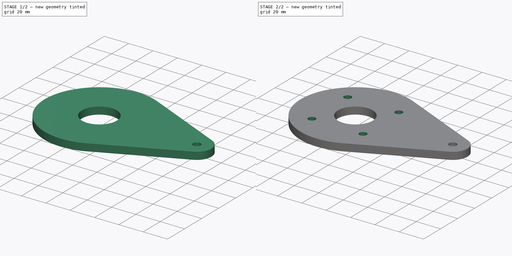
[diagram: build sequence overview — one tinted view per stage of 2, left to right]
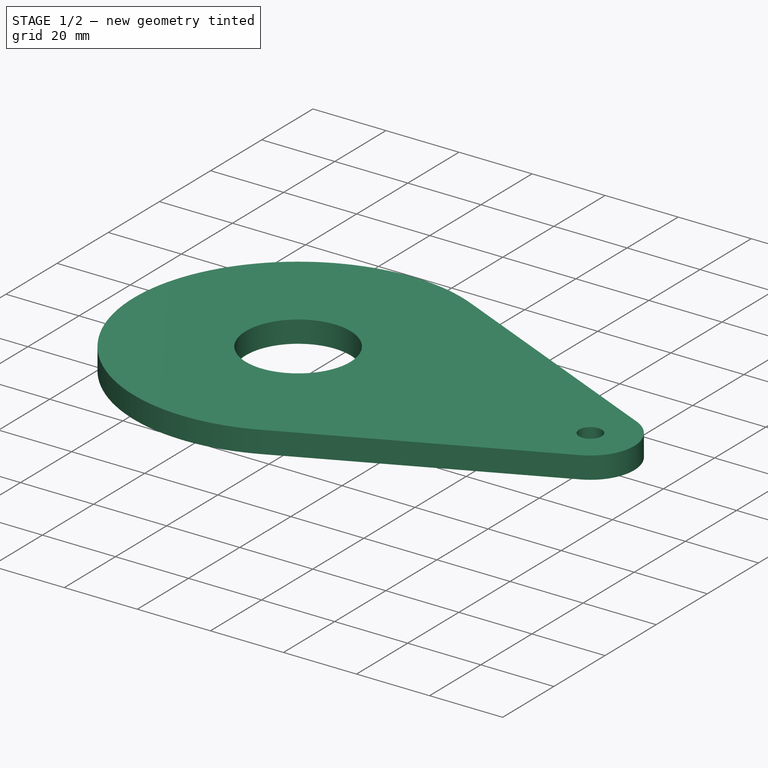
[diagram: stage 1 of 2 — iso view after this stage's code; geometry added in this stage tinted green]
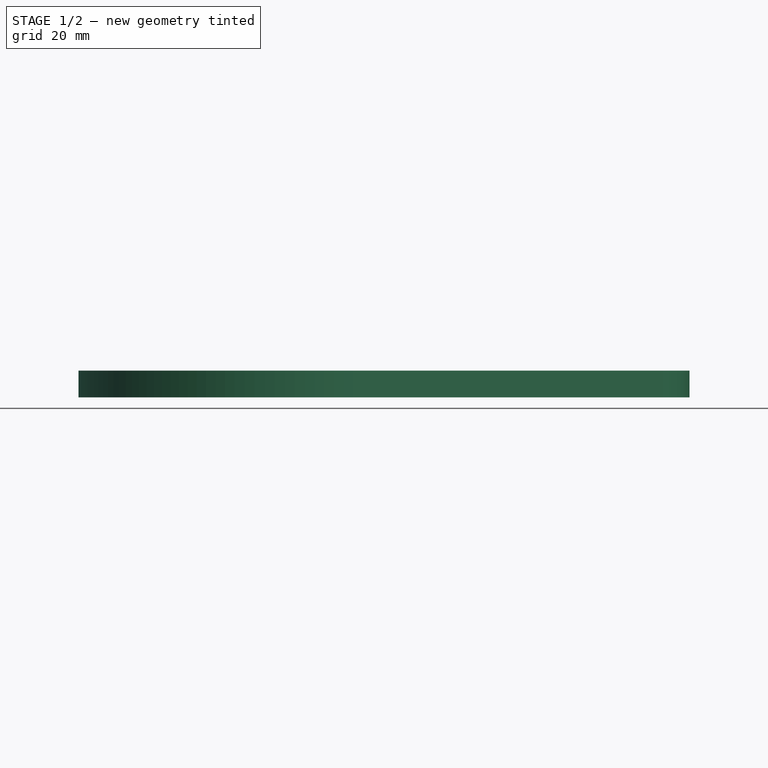
[diagram: stage 1 of 2 — front view after this stage's code; geometry added in this stage tinted green]
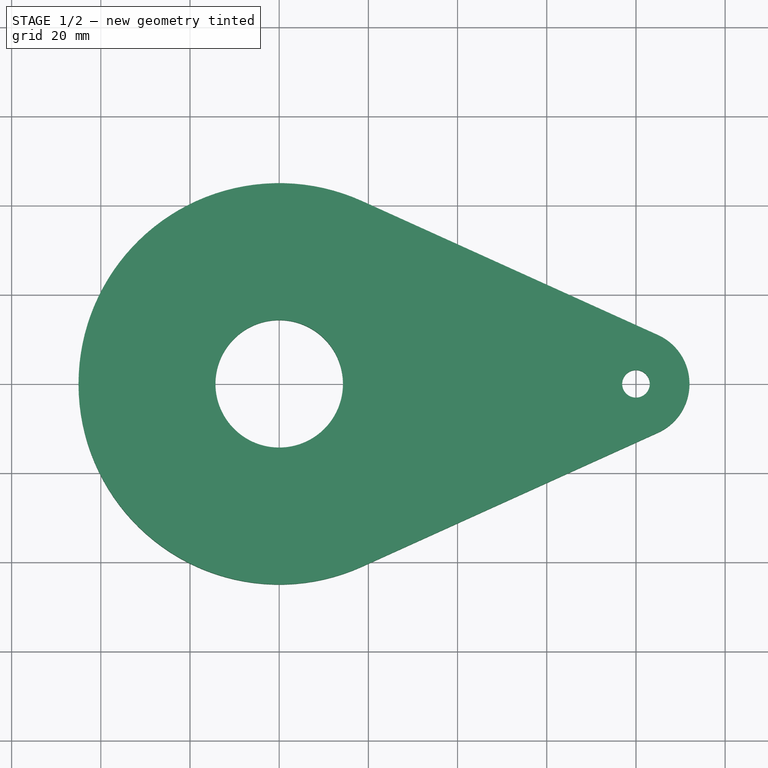
[diagram: stage 1 of 2 — top view after this stage's code; geometry added in this stage tinted green]
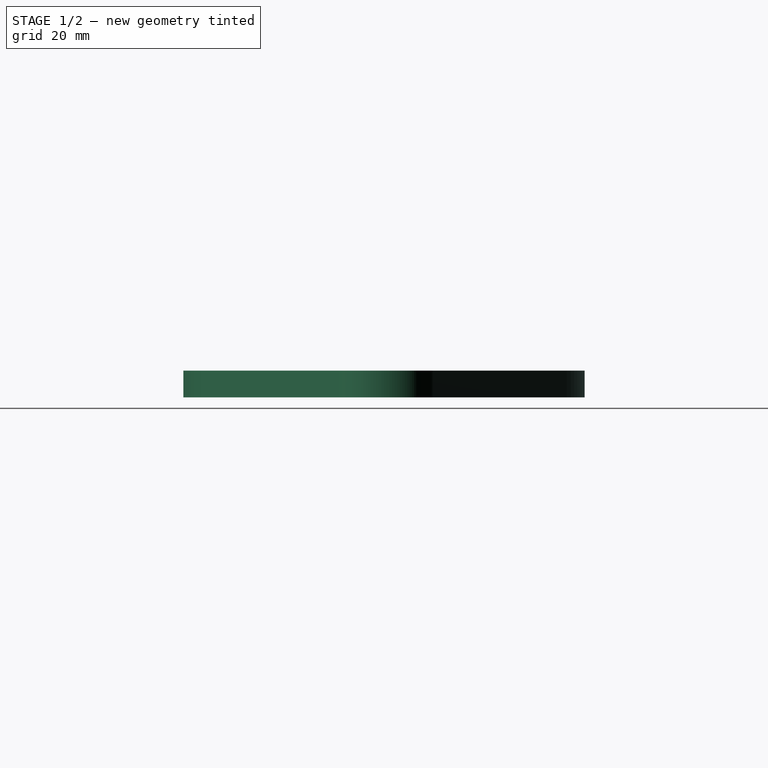
[diagram: stage 1 of 2 — right view after this stage's code; geometry added in this stage tinted green]
FCSTD DOCUMENT
Label: control-arm
objects: Sketcher::SketchObject×2, PartDesign::Pad×1, PartDesign::Pocket×1
note: 6 computed .brp shape members not serialized (recipe doc carries the construction recipe); baked Part::Feature solids carry a one-line shape summary decoded from their .brp

FEATURE [Sketcher::SketchObject] Sketch
  sketch-geometry (6):
    g0: ArcOfCircle CenterX=0 CenterY=0 CenterZ=0 NormalX=0 NormalY=0 NormalZ=1 Radius=45 StartAngle=1.1456 EndAngle=5.13758
    g1: ArcOfCircle CenterX=80 CenterY=0 CenterZ=0 NormalX=0 NormalY=0 NormalZ=1 Radius=12 StartAngle=5.13758 EndAngle=7.42879
    g2: LineSegment StartX=18.5625 StartY=40.9931 StartZ=0 EndX=84.95 EndY=10.9315 EndZ=0
    g3: LineSegment StartX=18.5625 StartY=-40.9931 StartZ=0 EndX=84.95 EndY=-10.9315 EndZ=0
    g4: Circle CenterX=0 CenterY=0 CenterZ=0 NormalX=0 NormalY=0 NormalZ=1 Radius=14.3
    g5: Circle CenterX=80 CenterY=0 CenterZ=0 NormalX=0 NormalY=0 NormalZ=1 Radius=3.1
  constraints (17):
    c: Coincident(g0,g-1)
    c: PointOnObject(g1,g-1)
    c: Coincident(g2,g0)
    c: Coincident(g3,g1)
    c: Tangent(g2,g1)
    c: Coincident(g1,g2)
    c: Tangent(g0,g2)
    c: Coincident(g3,g0)
    c: Tangent(g0,g3)
    c: Tangent(g3,g1)
    c: DistanceX(g-1,g1) = 80
    c: Radius(g0) = 45
    c: Radius(g1) = 12
    c: Coincident(g4,g-1)
    c: Radius(g4) = 14.3
    c: Coincident(g5,g1)
    c: Radius(g5) = 3.1
FEATURE [PartDesign::Pad] Pad
  Length = 6
  Length2 = 100
  Sketch = -> Sketch
  Type = 0
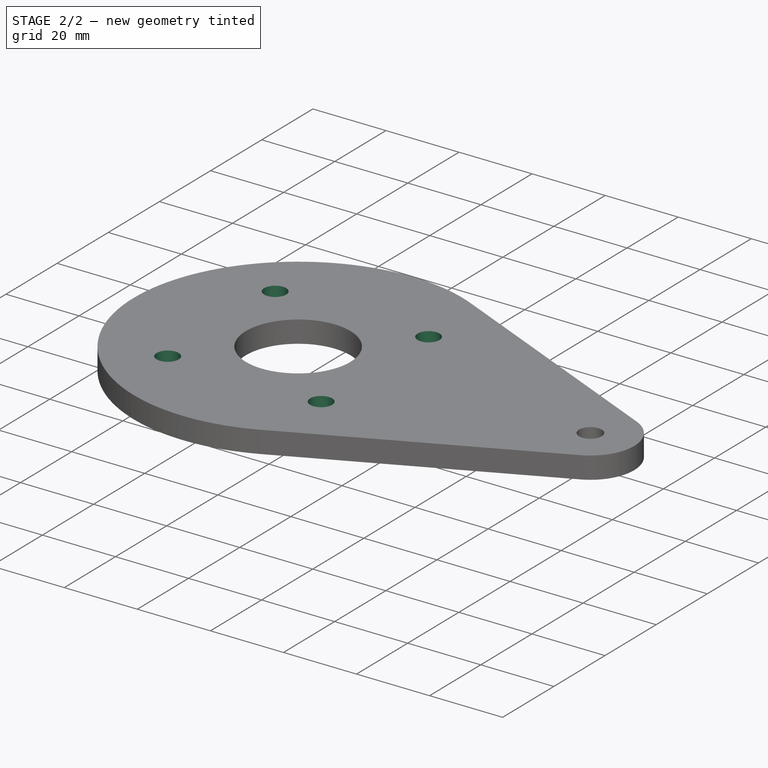
[diagram: stage 2 of 2 — iso view after this stage's code; geometry added in this stage tinted green]
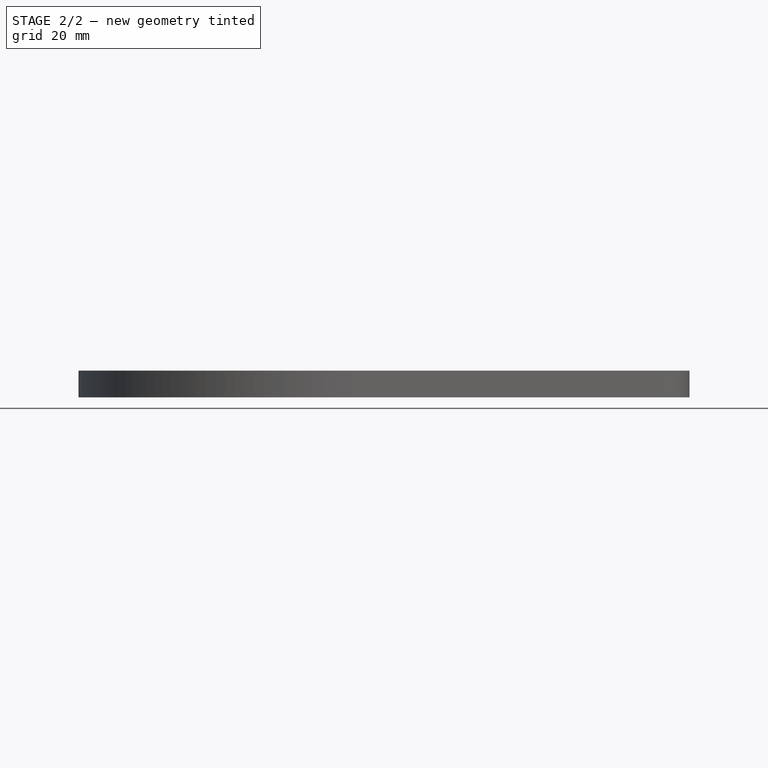
[diagram: stage 2 of 2 — front view after this stage's code; geometry added in this stage tinted green]
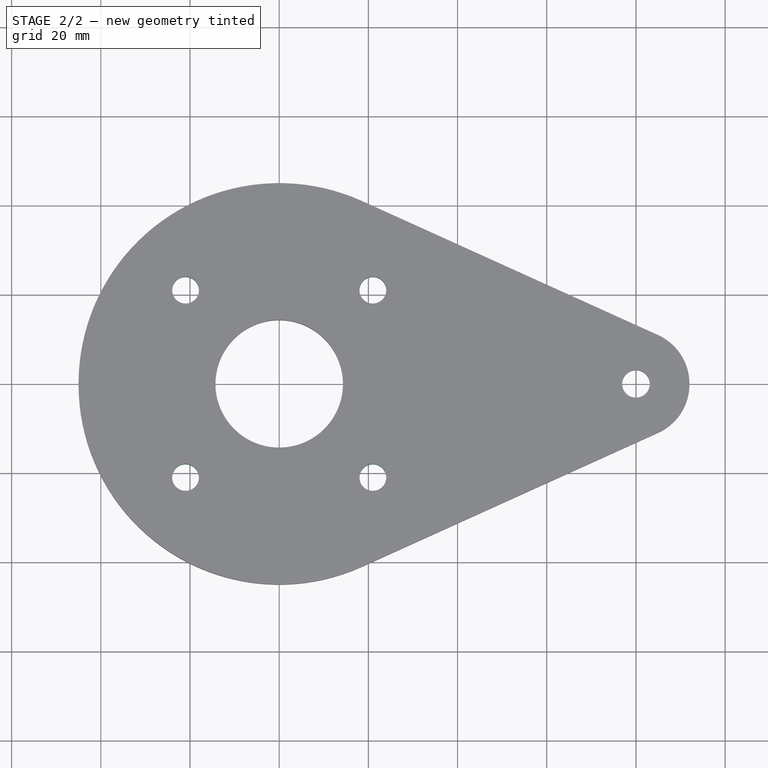
[diagram: stage 2 of 2 — top view after this stage's code; geometry added in this stage tinted green]
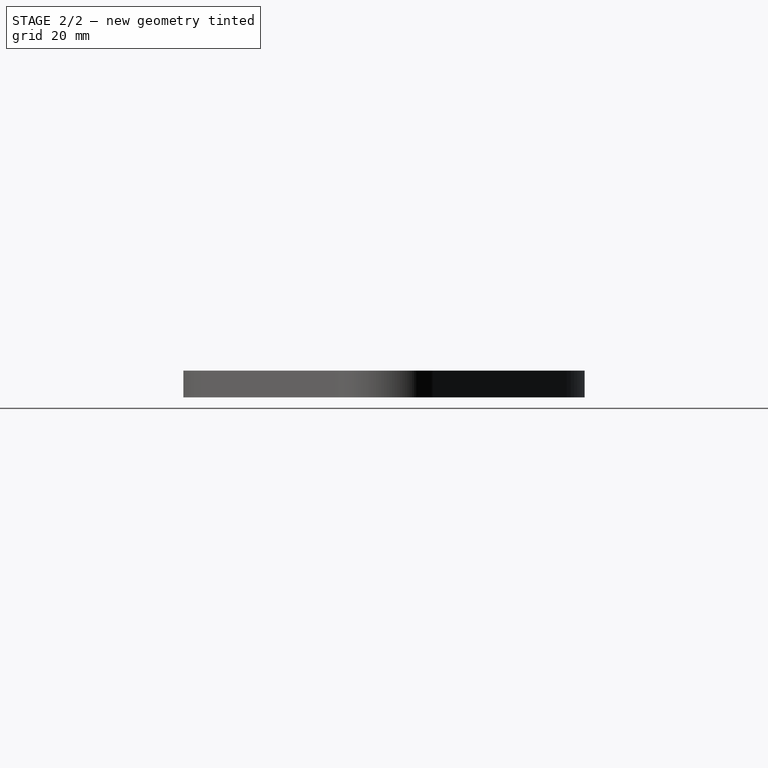
[diagram: stage 2 of 2 — right view after this stage's code; geometry added in this stage tinted green]
FEATURE [Sketcher::SketchObject] Sketch001
  Placement = pos=(0,0,6) rot=(0,0,1;0rad)
  Support = -> Pad [Face8]
  sketch-geometry (8):
    g0: LineSegment [constr] StartX=-21.0011 StartY=21.0011 StartZ=0 EndX=21.0011 EndY=21.0011 EndZ=0
    g1: LineSegment [constr] StartX=21.0011 StartY=21.0011 StartZ=0 EndX=21.0011 EndY=-21.0011 EndZ=0
    g2: LineSegment [constr] StartX=21.0011 StartY=-21.0011 StartZ=0 EndX=-21.0011 EndY=-21.0011 EndZ=0
    g3: LineSegment [constr] StartX=-21.0011 StartY=-21.0011 StartZ=0 EndX=-21.0011 EndY=21.0011 EndZ=0
    g4: Circle CenterX=-21.0011 CenterY=21.0011 CenterZ=0 NormalX=0 NormalY=0 NormalZ=1 Radius=3
    g5: Circle CenterX=21.0011 CenterY=21.0011 CenterZ=0 NormalX=0 NormalY=0 NormalZ=1 Radius=3
    g6: Circle CenterX=-21.0011 CenterY=-21.0011 CenterZ=0 NormalX=0 NormalY=0 NormalZ=1 Radius=3
    g7: Circle CenterX=21.0011 CenterY=-21.0011 CenterZ=0 NormalX=0 NormalY=0 NormalZ=1 Radius=3
  constraints (20):
    c: Coincident(g0,g1)
    c: Coincident(g1,g2)
    c: Coincident(g2,g3)
    c: Coincident(g3,g0)
    c: Horizontal(g0)
    c: Horizontal(g2)
    c: Vertical(g1)
    c: Vertical(g3)
    c: Symmetric(g0,g0,g-2)
    c: Symmetric(g0,g2,g-1)
    c: Distance(g-1,g0) = 29.7
    c: Equal(g0,g1)
    c: Coincident(g4,g0)
    c: Coincident(g6,g2)
    c: Equal(g4,g6)
    c: Equal(g6,g7)
    c: Equal(g7,g5)
    c: Radius(g5) = 3
    c: Coincident(g7,g1)
    c: Coincident(g5,g0)
FEATURE [PartDesign::Pocket] Pocket
  Length = 10
  Sketch = -> Sketch001
  Type = 0
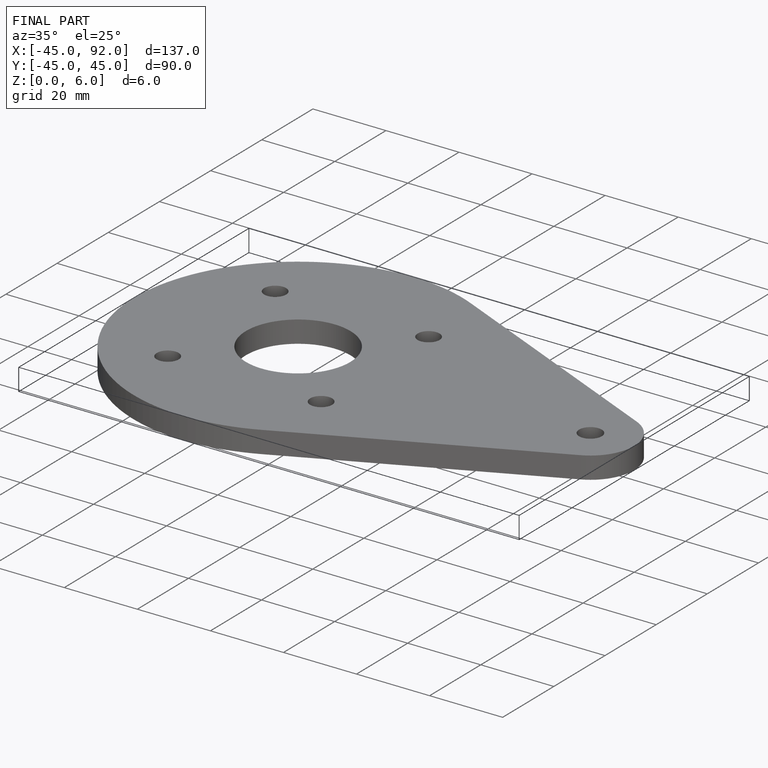
[diagram: finished part — iso view with bounding-box wireframe]
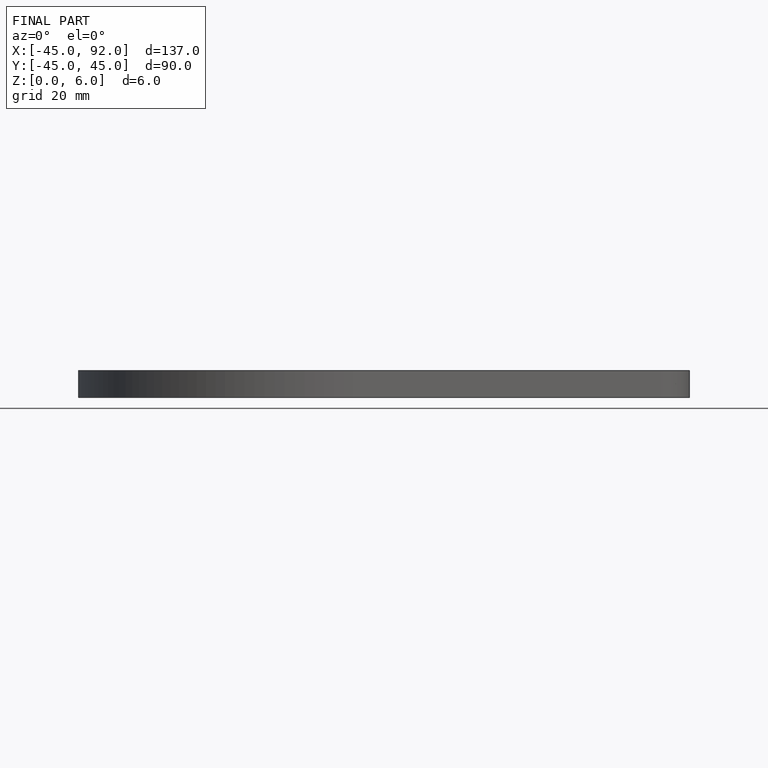
[diagram: finished part — front view with bounding-box wireframe]
